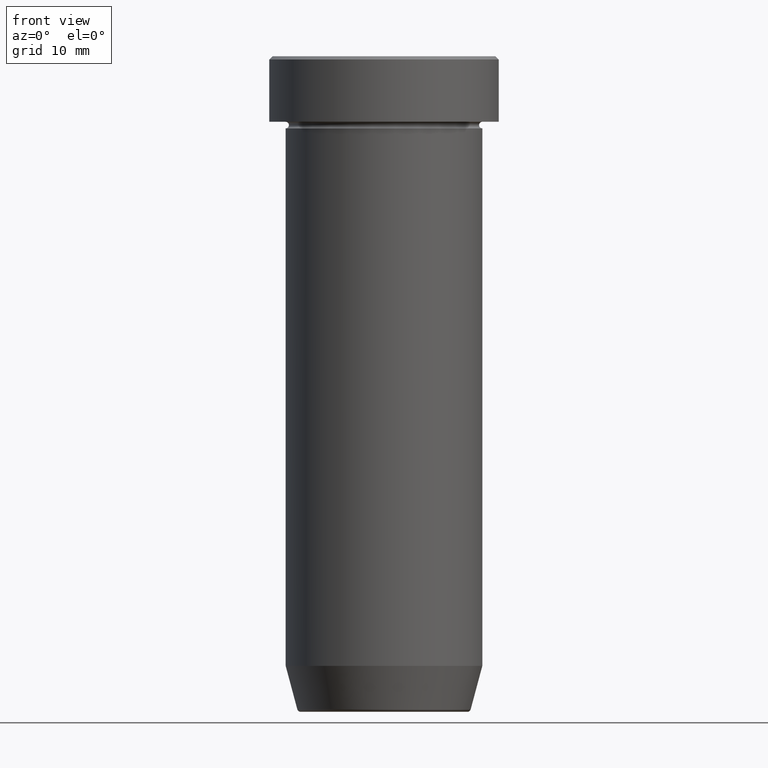
[diagram: clean part render]
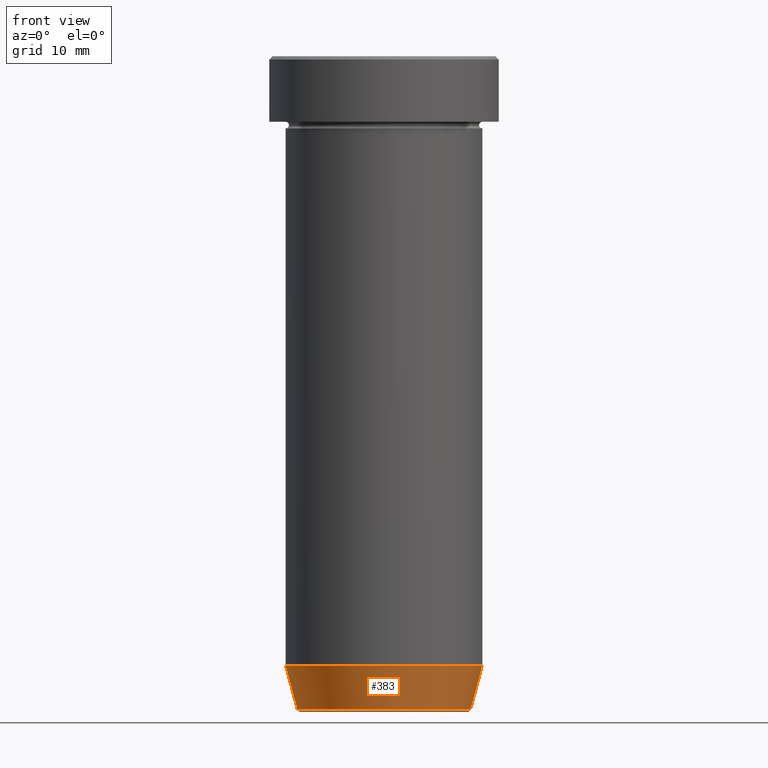
[diagram: same view with one face highlighted and labeled with its STEP entity id]
A machine part, front view. The second image highlights one B-rep face of the part: STEP entity #383.
In plain terms, the highlighted conical surface has half-angle 15 deg.
Its self-contained STEP definition (entity closure, byte-faithful):
#17 = EDGE_CURVE ( 'NONE', #212, #226, #401, .T. ) ;
#26 = DIRECTION ( 'NONE',  ( -1.000000000000000000, 0.000000000000000000, 0.000000000000000000 ) ) ;
#43 = CARTESIAN_POINT ( 'NONE',  ( -13.22365507213718594, 1.728200442216588189E-15, -99.62940952255127058 ) ) ;
#44 = DIRECTION ( 'NONE',  ( 0.2588190451025210725, 0.000000000000000000, 0.9659258262890680902 ) ) ;
#58 = VECTOR ( 'NONE', #491, 1000.000000000000114 ) ;
#59 = CONICAL_SURFACE ( 'NONE', #404, 13.12435565298213547, 0.2617993877991497964 ) ;
#74 = DIRECTION ( 'NONE',  ( -0.000000000000000000, -0.000000000000000000, 1.000000000000000000 ) ) ;
#78 = CARTESIAN_POINT ( 'NONE',  ( 0.000000000000000000, 0.000000000000000000, -99.62940952255127058 ) ) ;
#104 = ORIENTED_EDGE ( 'NONE', *, *, #17, .T. ) ;
#110 = CIRCLE ( 'NONE', #450, 15.00000000000000000 ) ;
#116 = CARTESIAN_POINT ( 'NONE',  ( 15.00000000000000000, 0.000000000000000000, -93.00000000000000000 ) ) ;
#120 = AXIS2_PLACEMENT_3D ( 'NONE', #78, #130, #26 ) ;
#122 = VERTEX_POINT ( 'NONE', #116 ) ;
#128 = LINE ( 'NONE', #317, #58 ) ;
#130 = DIRECTION ( 'NONE',  ( -0.000000000000000000, -0.000000000000000000, 1.000000000000000000 ) ) ;
#169 = CARTESIAN_POINT ( 'NONE',  ( -15.00000000000000000, 1.836970198721029589E-15, -93.00000000000000000 ) ) ;
#180 = EDGE_CURVE ( 'NONE', #212, #441, #128, .T. ) ;
#212 = VERTEX_POINT ( 'NONE', #43 ) ;
#214 = FACE_OUTER_BOUND ( 'NONE', #341, .T. ) ;
#226 = VERTEX_POINT ( 'NONE', #237 ) ;
#237 = CARTESIAN_POINT ( 'NONE',  ( 13.22365507213718594, 0.000000000000000000, -99.62940952255127058 ) ) ;
#240 = EDGE_CURVE ( 'NONE', #441, #122, #110, .T. ) ;
#249 = ORIENTED_EDGE ( 'NONE', *, *, #521, .T. ) ;
#317 = CARTESIAN_POINT ( 'NONE',  ( -13.12435565298213547, 1.607270014129604385E-15, -100.0000000000000000 ) ) ;
#324 = VECTOR ( 'NONE', #44, 1000.000000000000114 ) ;
#341 = EDGE_LOOP ( 'NONE', ( #581, #104, #249, #376 ) ) ;
#352 = DIRECTION ( 'NONE',  ( 1.000000000000000000, 0.000000000000000000, 0.000000000000000000 ) ) ;
#376 = ORIENTED_EDGE ( 'NONE', *, *, #240, .F. ) ;
#377 = LINE ( 'NONE', #547, #324 ) ;
#383 = ADVANCED_FACE ( 'NONE', ( #214 ), #59, .T. ) ;
#401 = CIRCLE ( 'NONE', #120, 13.22365507213718594 ) ;
#404 = AXIS2_PLACEMENT_3D ( 'NONE', #526, #74, #352 ) ;
#417 = DIRECTION ( 'NONE',  ( 1.000000000000000000, 0.000000000000000000, 0.000000000000000000 ) ) ;
#441 = VERTEX_POINT ( 'NONE', #169 ) ;
#450 = AXIS2_PLACEMENT_3D ( 'NONE', #507, #452, #417 ) ;
#452 = DIRECTION ( 'NONE',  ( -0.000000000000000000, -0.000000000000000000, 1.000000000000000000 ) ) ;
#491 = DIRECTION ( 'NONE',  ( -0.2588190451025210725, 3.169619151431769255E-17, 0.9659258262890680902 ) ) ;
#507 = CARTESIAN_POINT ( 'NONE',  ( 0.000000000000000000, 0.000000000000000000, -93.00000000000000000 ) ) ;
#521 = EDGE_CURVE ( 'NONE', #226, #122, #377, .T. ) ;
#526 = CARTESIAN_POINT ( 'NONE',  ( 0.000000000000000000, 0.000000000000000000, -100.0000000000000000 ) ) ;
#547 = CARTESIAN_POINT ( 'NONE',  ( 13.12435565298213547, 0.000000000000000000, -100.0000000000000000 ) ) ;
#581 = ORIENTED_EDGE ( 'NONE', *, *, #180, .F. ) ;